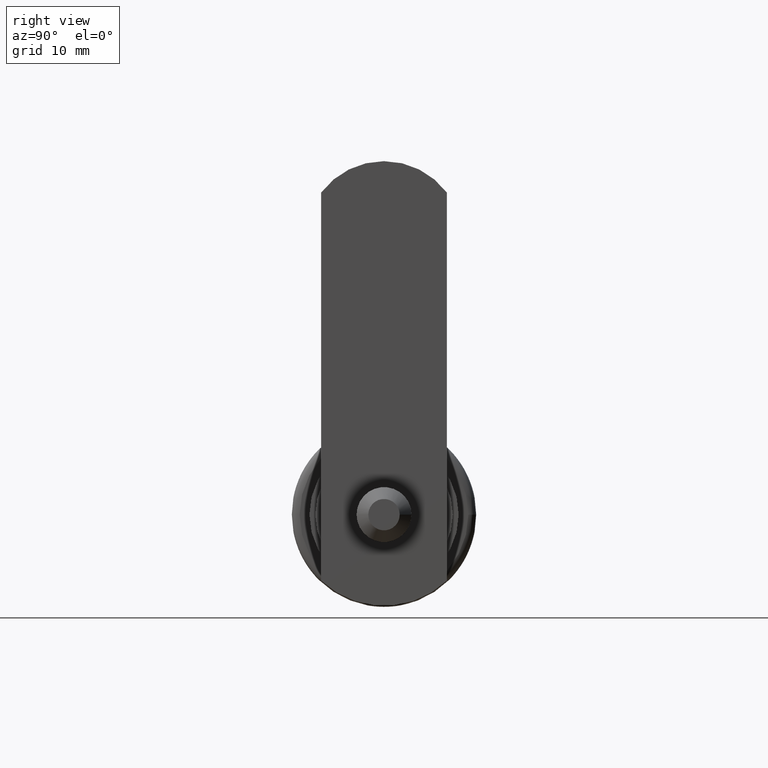
[diagram: clean part render]
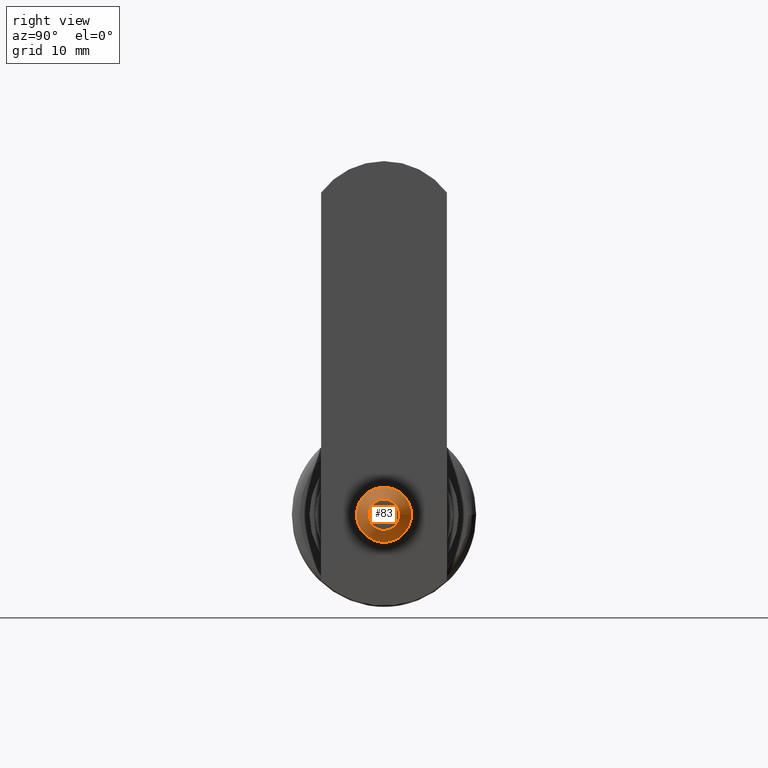
[diagram: same view with one face highlighted and labeled with its STEP entity id]
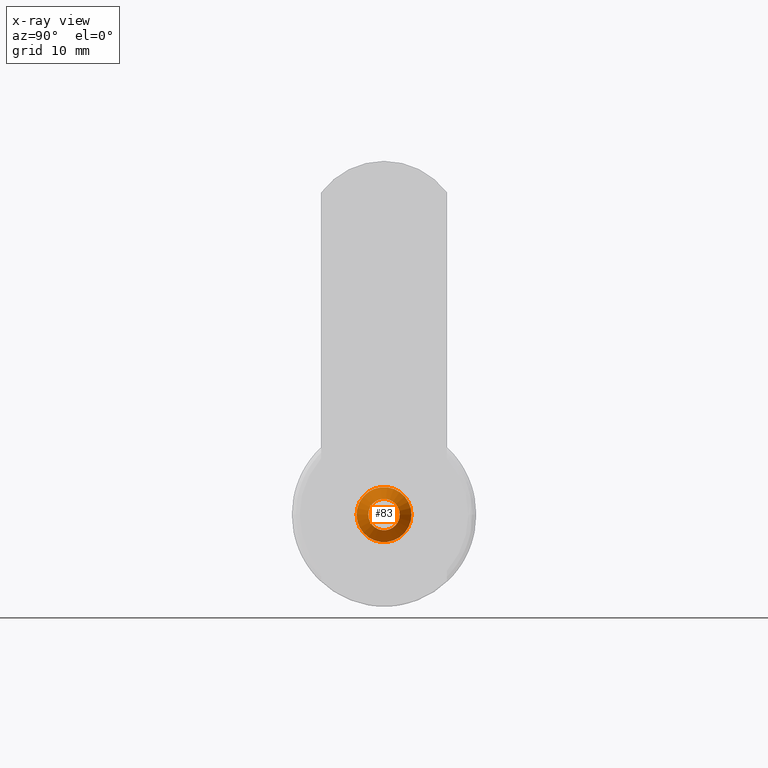
[diagram: x-ray of the same camera — body ghosted, the highlighted face saturated]
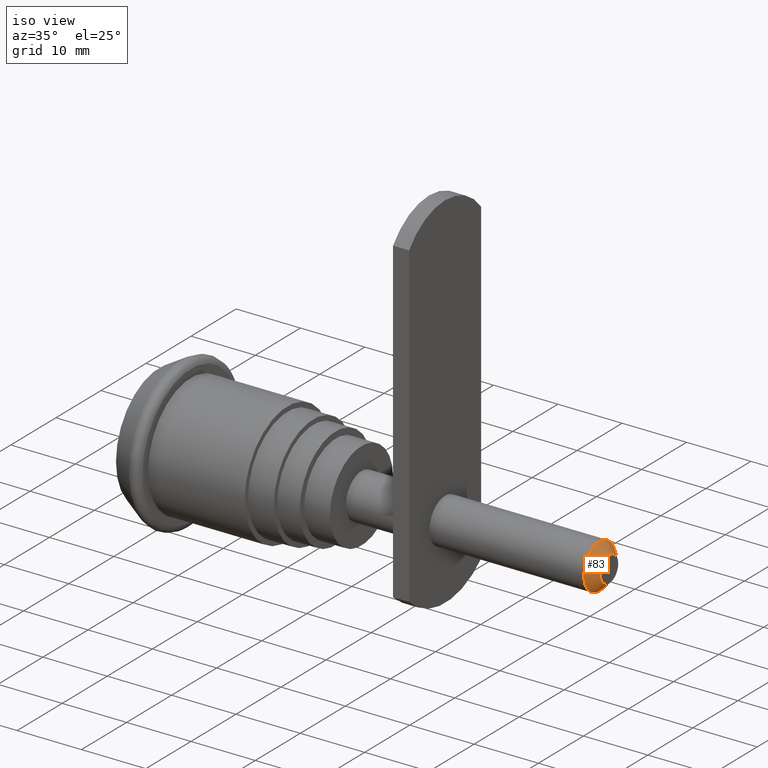
[diagram: same view with one face highlighted and labeled with its STEP entity id]
A machine part, right view. The second image highlights one B-rep face of the part: STEP entity #83.
The next image is the same camera in x-ray: the body ghosted, the highlighted face saturated — about 0% of this face is hidden behind the body in this view.
A second angle (iso view) of the same face is appended — the face is thin or edge-on in the first view.
In plain terms, the highlighted face is a freeform B-spline surface patch.
Its self-contained STEP definition (entity closure, byte-faithful):
#7=CARTESIAN_POINT('',(69.999999999719876,1.999999999991815,0.0));
#8=VERTEX_POINT('',#7);
#9=CARTESIAN_POINT('',(69.999999999719876,-1.999999999991815,0.0));
#10=VERTEX_POINT('',#9);
#11=CARTESIAN_POINT('',(69.999999999719876,0.0,0.0));
#12=DIRECTION('',(1.0,0.0,0.0));
#13=DIRECTION('',(0.0,1.0,0.0));
#14=AXIS2_PLACEMENT_3D('',#11,#12,#13);
#15=CIRCLE('',#14,1.999999999991815);
#16=EDGE_CURVE('',#8,#10,#15,.T.);
#18=CARTESIAN_POINT('',(69.999999999719876,0.0,0.0));
#19=DIRECTION('',(1.0,0.0,0.0));
#20=DIRECTION('',(0.0,1.0,0.0));
#21=AXIS2_PLACEMENT_3D('',#18,#19,#20);
#22=CIRCLE('',#21,1.999999999991815);
#23=EDGE_CURVE('',#10,#8,#22,.T.);
#28=CARTESIAN_POINT('',(69.999999999719876,1.999999999991815,0.0));
#29=CARTESIAN_POINT('',(69.999999999719876,1.999999999991815,1.999999999991815));
#30=CARTESIAN_POINT('',(69.999999999719876,0.0,1.999999999991815));
#31=CARTESIAN_POINT('',(69.999999999719876,-1.999999999991815,1.999999999991815));
#32=CARTESIAN_POINT('',(69.999999999719876,-1.999999999991815,0.0));
#33=CARTESIAN_POINT('',(69.999999999719876,-1.999999999991815,-1.999999999991815));
#34=CARTESIAN_POINT('',(69.999999999719876,0.0,-1.999999999991815));
#35=CARTESIAN_POINT('',(69.999999999719876,1.999999999991815,-1.999999999991815));
#36=CARTESIAN_POINT('',(69.999999999719876,1.999999999991815,0.0));
#37=CARTESIAN_POINT('',(68.499999999726242,3.499999999985448,0.0));
#38=CARTESIAN_POINT('',(68.499999999726242,3.499999999985448,3.499999999985448));
#39=CARTESIAN_POINT('',(68.499999999726242,0.0,3.499999999985448));
#40=CARTESIAN_POINT('',(68.499999999726242,-3.499999999985448,3.499999999985448));
#41=CARTESIAN_POINT('',(68.499999999726242,-3.499999999985448,0.0));
#42=CARTESIAN_POINT('',(68.499999999726242,-3.499999999985448,-3.499999999985448));
#43=CARTESIAN_POINT('',(68.499999999726242,0.0,-3.499999999985448));
#44=CARTESIAN_POINT('',(68.499999999726242,3.499999999985448,-3.499999999985448));
#45=CARTESIAN_POINT('',(68.499999999726242,3.499999999985448,0.0));
#53=(BOUNDED_SURFACE()B_SPLINE_SURFACE(2,1,((#28,#37),(#29,#38),(#30,#39),(#31,#40),(#32,#41),(#33,#42),(#34,#43),(#35,#44),(#36,#45)),.UNSPECIFIED.,.T.,.F.,.U.)B_SPLINE_SURFACE_WITH_KNOTS((3,2,2,2,3),(2,2),(0.0,0.250000000000000,0.500000000000000,0.750000000000000,1.0),(0.0,2.121320343550639),.UNSPECIFIED.)GEOMETRIC_REPRESENTATION_ITEM()RATIONAL_B_SPLINE_SURFACE(((1.0,1.0),(0.707106781186548,0.707106781186548),(1.0,1.0),(0.707106781186548,0.707106781186548),(1.0,1.0),(0.707106781186548,0.707106781186548),(1.0,1.0),(0.707106781186548,0.707106781186548),(1.0,1.0)))REPRESENTATION_ITEM('')SURFACE());
#54=CARTESIAN_POINT('',(68.499999999726242,3.499999999985448,0.0));
#55=VERTEX_POINT('',#54);
#56=CARTESIAN_POINT('',(69.999999999719876,1.999999999991815,0.0));
#57=DIRECTION('',(-0.707106781186548,0.707106781186548,0.0));
#58=VECTOR('',#57,2.121320343550639);
#59=LINE('',#56,#58);
#60=EDGE_CURVE('',#8,#55,#59,.T.);
#61=ORIENTED_EDGE('',*,*,#60,.T.);
#62=CARTESIAN_POINT('',(68.499999999726242,-3.499999999985448,0.0));
#63=VERTEX_POINT('',#62);
#64=CARTESIAN_POINT('',(68.499999999726242,0.0,0.0));
#65=DIRECTION('',(1.0,0.0,0.0));
#66=DIRECTION('',(0.0,1.0,0.0));
#67=AXIS2_PLACEMENT_3D('',#64,#65,#66);
#68=CIRCLE('',#67,3.499999999985448);
#69=EDGE_CURVE('',#55,#63,#68,.T.);
#70=ORIENTED_EDGE('',*,*,#69,.T.);
#71=CARTESIAN_POINT('',(68.499999999726242,0.0,0.0));
#72=DIRECTION('',(1.0,0.0,0.0));
#73=DIRECTION('',(0.0,1.0,0.0));
#74=AXIS2_PLACEMENT_3D('',#71,#72,#73);
#75=CIRCLE('',#74,3.499999999985448);
#76=EDGE_CURVE('',#63,#55,#75,.T.);
#77=ORIENTED_EDGE('',*,*,#76,.T.);
#78=ORIENTED_EDGE('',*,*,#60,.F.);
#79=ORIENTED_EDGE('',*,*,#23,.F.);
#80=ORIENTED_EDGE('',*,*,#16,.F.);
#81=EDGE_LOOP('',(#61,#70,#77,#78,#79,#80));
#82=FACE_OUTER_BOUND('',#81,.T.);
#83=ADVANCED_FACE('',(#82),#53,.F.);